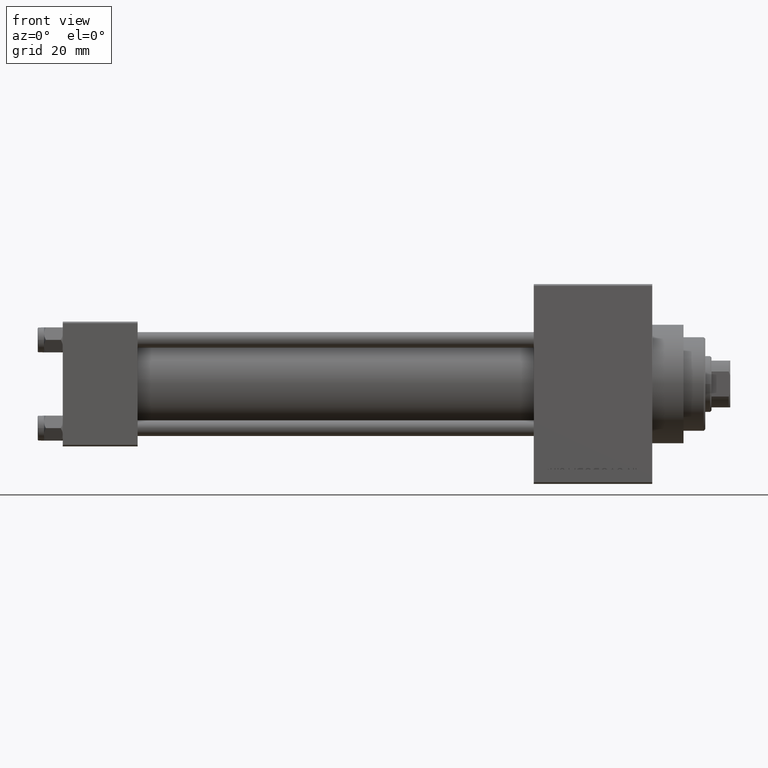
[diagram: clean part render]
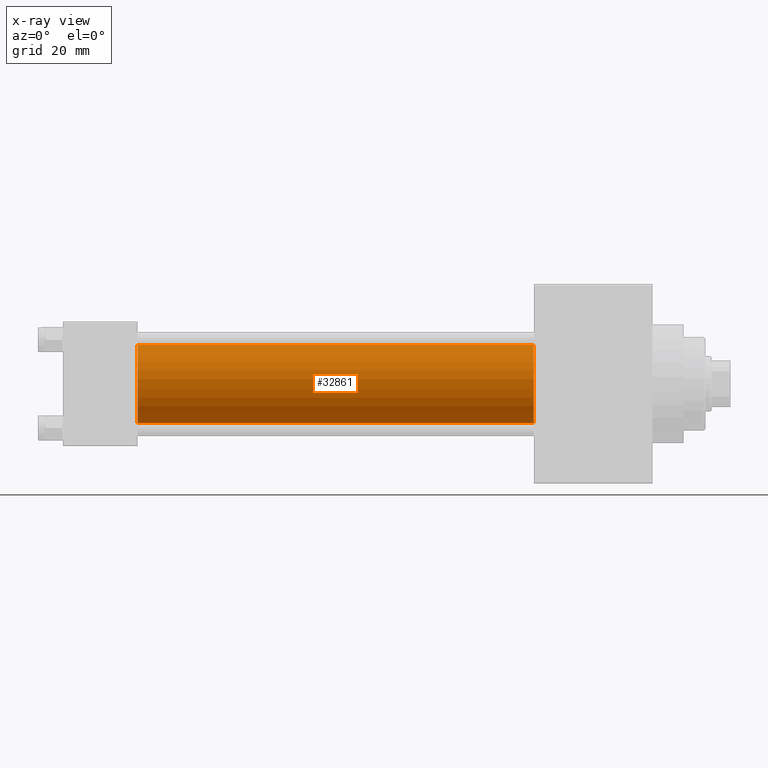
[diagram: x-ray — body ghosted, one internal face saturated and labeled with its STEP entity id]
A machine part, front view, then the same camera in x-ray: the body is ghosted and one INTERNAL B-rep face — a face not visible from any outside direction — is saturated and labeled: STEP entity #32861.
In plain terms, the highlighted cylindrical surface (partial cylindrical patch) has radius 12.5 mm, axis along (-1, -0, -0).
Its self-contained STEP definition (entity closure, byte-faithful):
#130 = LINE ( 'NONE', #29150, #25974 ) ;
#669 = VECTOR ( 'NONE', #37815, 1000.000000000000000 ) ;
#1548 = AXIS2_PLACEMENT_3D ( 'NONE', #20537, #38131, #12457 ) ;
#4667 = CIRCLE ( 'NONE', #34259, 12.49999999999999645 ) ;
#5897 = EDGE_CURVE ( 'NONE', #11219, #28081, #130, .T. ) ;
#6777 = CIRCLE ( 'NONE', #32579, 12.49999999999999645 ) ;
#9749 = CARTESIAN_POINT ( 'NONE',  ( 151.0000000000000000, -2.602085213965210642E-15, 12.49999999999999645 ) ) ;
#11219 = VERTEX_POINT ( 'NONE', #31783 ) ;
#12457 = DIRECTION ( 'NONE',  ( 0.000000000000000000, 0.000000000000000000, 1.000000000000000000 ) ) ;
#13316 = CARTESIAN_POINT ( 'NONE',  ( 24.00000000000000000, -2.602085213965210642E-15, 12.49999999999999645 ) ) ;
#17537 = CARTESIAN_POINT ( 'NONE',  ( 24.00000000000000000, -1.071276715031019515E-15, -12.49999999999999645 ) ) ;
#18292 = DIRECTION ( 'NONE',  ( 1.000000000000000000, 0.000000000000000000, 0.000000000000000000 ) ) ;
#18636 = DIRECTION ( 'NONE',  ( 0.000000000000000000, 0.000000000000000000, -1.000000000000000000 ) ) ;
#20537 = CARTESIAN_POINT ( 'NONE',  ( 151.0000000000000000, -2.602085213965210642E-15, 0.000000000000000000 ) ) ;
#22679 = CARTESIAN_POINT ( 'NONE',  ( 24.00000000000000000, -2.602085213965210642E-15, 0.000000000000000000 ) ) ;
#25513 = ORIENTED_EDGE ( 'NONE', *, *, #38370, .F. ) ;
#25579 = DIRECTION ( 'NONE',  ( -1.000000000000000000, -0.000000000000000000, -0.000000000000000000 ) ) ;
#25746 = EDGE_CURVE ( 'NONE', #26902, #30392, #42351, .T. ) ;
#25770 = DIRECTION ( 'NONE',  ( 1.000000000000000000, 0.000000000000000000, 0.000000000000000000 ) ) ;
#25974 = VECTOR ( 'NONE', #25579, 1000.000000000000000 ) ;
#26656 = EDGE_CURVE ( 'NONE', #26902, #11219, #6777, .T. ) ;
#26902 = VERTEX_POINT ( 'NONE', #44915 ) ;
#27449 = ORIENTED_EDGE ( 'NONE', *, *, #26656, .T. ) ;
#28081 = VERTEX_POINT ( 'NONE', #17537 ) ;
#29150 = CARTESIAN_POINT ( 'NONE',  ( 151.0000000000000000, -1.071276715031019515E-15, -12.49999999999999645 ) ) ;
#30392 = VERTEX_POINT ( 'NONE', #13316 ) ;
#31783 = CARTESIAN_POINT ( 'NONE',  ( 151.0000000000000000, -1.071276715031019515E-15, -12.49999999999999645 ) ) ;
#32579 = AXIS2_PLACEMENT_3D ( 'NONE', #35895, #18292, #42816 ) ;
#32861 = ADVANCED_FACE ( 'NONE', ( #45994 ), #35043, .F. ) ;
#34259 = AXIS2_PLACEMENT_3D ( 'NONE', #22679, #25770, #18636 ) ;
#35043 = CYLINDRICAL_SURFACE ( 'NONE', #1548, 12.49999999999999645 ) ;
#35895 = CARTESIAN_POINT ( 'NONE',  ( 151.0000000000000000, -2.602085213965210642E-15, 0.000000000000000000 ) ) ;
#35910 = ORIENTED_EDGE ( 'NONE', *, *, #25746, .F. ) ;
#37815 = DIRECTION ( 'NONE',  ( -1.000000000000000000, -0.000000000000000000, -0.000000000000000000 ) ) ;
#38131 = DIRECTION ( 'NONE',  ( -1.000000000000000000, -0.000000000000000000, -0.000000000000000000 ) ) ;
#38370 = EDGE_CURVE ( 'NONE', #30392, #28081, #4667, .T. ) ;
#40497 = EDGE_LOOP ( 'NONE', ( #27449, #45422, #25513, #35910 ) ) ;
#42351 = LINE ( 'NONE', #9749, #669 ) ;
#42816 = DIRECTION ( 'NONE',  ( 0.000000000000000000, 0.000000000000000000, -1.000000000000000000 ) ) ;
#44915 = CARTESIAN_POINT ( 'NONE',  ( 151.0000000000000000, -2.602085213965210642E-15, 12.49999999999999645 ) ) ;
#45422 = ORIENTED_EDGE ( 'NONE', *, *, #5897, .T. ) ;
#45994 = FACE_OUTER_BOUND ( 'NONE', #40497, .T. ) ;